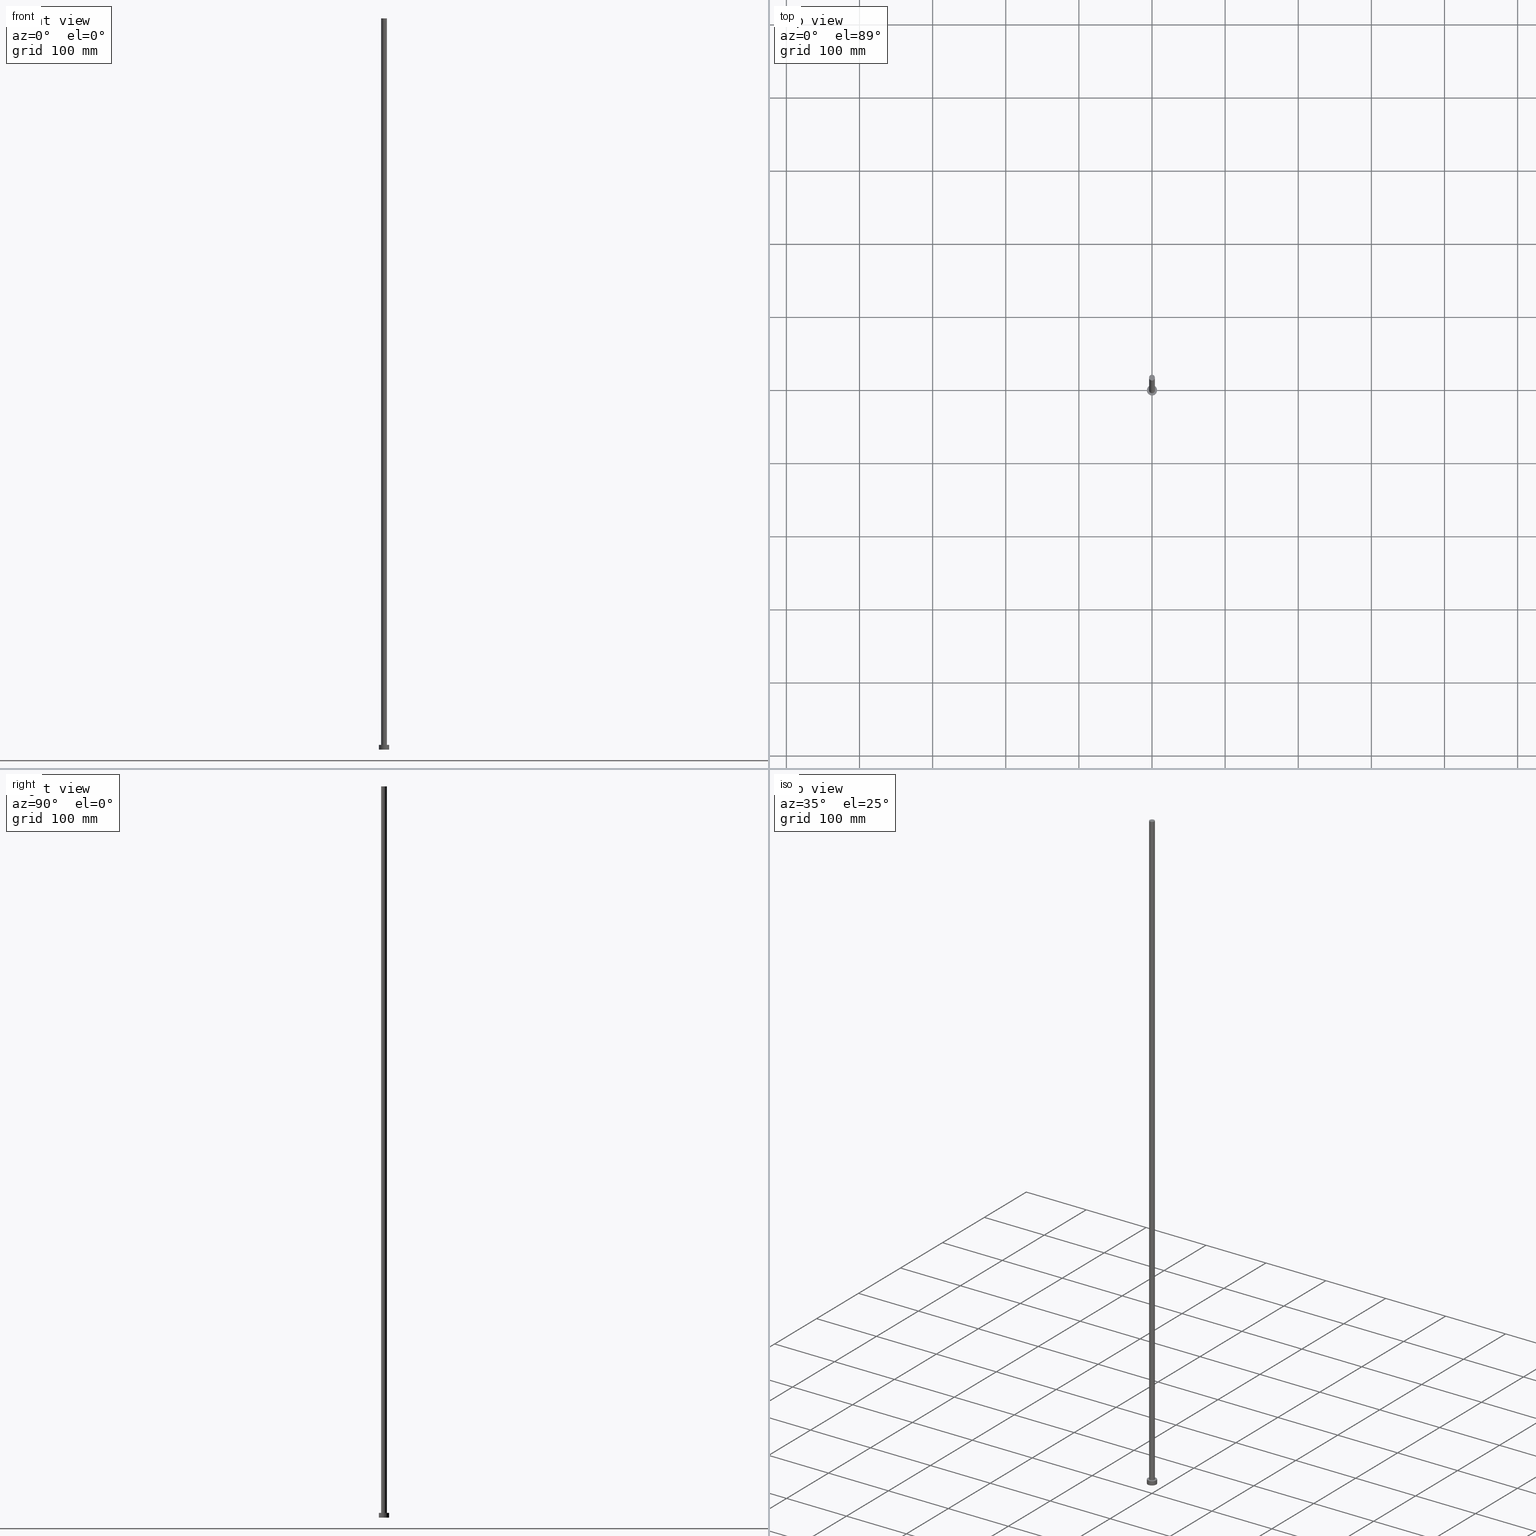
[diagram: canonical four-view strip — front | top / right | iso, engineering-drawing reading convention]
A machine part, canonical four-view strip (front | top / right | iso — engineering-drawing reading convention). The complete STEP part file that produces these views, byte-faithful:
ISO-10303-21;
HEADER;
FILE_DESCRIPTION (( 'STEP AP203' ),
    '1' );
FILE_NAME ('d707.STEP',
    '2023-02-13T14:18:10',
    ( '' ),
    ( '' ),
    'SwSTEP 2.0',
    'SolidWorks 2019',
    '' );
FILE_SCHEMA (( 'CONFIG_CONTROL_DESIGN' ));
ENDSEC;

DATA;
#1 = PERSON_AND_ORGANIZATION_ROLE ( 'creator' ) ;
#2 = EDGE_CURVE ( 'NONE', #3, #41, #100, .T. ) ;
#3 = VERTEX_POINT ( 'NONE', #22 ) ;
#4 = SHAPE_DEFINITION_REPRESENTATION ( #69, #254 ) ;
#5 = CARTESIAN_POINT ( 'NONE',  ( -7.000000000000000000, 0.000000000000000000, 6.500000000000000000 ) ) ;
#6 = EDGE_LOOP ( 'NONE', ( #178, #94, #60, #97 ) ) ;
#7 = AXIS2_PLACEMENT_3D ( 'NONE', #29, #67, #162 ) ;
#8 = APPROVAL_ROLE ( '' ) ;
#9 = ORIENTED_EDGE ( 'NONE', *, *, #246, .F. ) ;
#10 = APPROVAL_STATUS ( 'not_yet_approved' ) ;
#11 = ORIENTED_EDGE ( 'NONE', *, *, #15, .F. ) ;
#12 = ADVANCED_FACE ( 'NONE', ( #158 ), #249, .T. ) ;
#13 = CARTESIAN_POINT ( 'NONE',  ( 4.000000000000000000, 4.898587196589412829E-16, 6.500000000000000000 ) ) ;
#14 = VECTOR ( 'NONE', #153, 1000.000000000000000 ) ;
#15 = EDGE_CURVE ( 'NONE', #224, #41, #117, .T. ) ;
#16 = PERSON_AND_ORGANIZATION ( #145, #44 ) ;
#17 = APPROVAL ( #31, 'NEUR�EN�' ) ;
#18 = APPROVAL_DATE_TIME ( #156, #17 ) ;
#19 = ORIENTED_EDGE ( 'NONE', *, *, #131, .F. ) ;
#20 = DATE_AND_TIME ( #52, #104 ) ;
#21 = ORIENTED_EDGE ( 'NONE', *, *, #210, .T. ) ;
#22 = CARTESIAN_POINT ( 'NONE',  ( -4.000000000000000000, 0.000000000000000000, 1000.000000000000000 ) ) ;
#23 = PRODUCT_DEFINITION_FORMATION_WITH_SPECIFIED_SOURCE ( 'LIBOVOLN�', '', #108, .NOT_KNOWN. ) ;
#24 = DATE_TIME_ROLE ( 'creation_date' ) ;
#25 = DIRECTION ( 'NONE',  ( -0.000000000000000000, -0.000000000000000000, -1.000000000000000000 ) ) ;
#26 = ORIENTED_EDGE ( 'NONE', *, *, #98, .T. ) ;
#27 = CARTESIAN_POINT ( 'NONE',  ( 0.000000000000000000, 0.000000000000000000, 1000.000000000000000 ) ) ;
#28 = EDGE_CURVE ( 'NONE', #182, #63, #90, .T. ) ;
#29 = CARTESIAN_POINT ( 'NONE',  ( 0.000000000000000000, 0.000000000000000000, 0.000000000000000000 ) ) ;
#30 = AXIS2_PLACEMENT_3D ( 'NONE', #135, #89, #99 ) ;
#31 = APPROVAL_STATUS ( 'not_yet_approved' ) ;
#32 = AXIS2_PLACEMENT_3D ( 'NONE', #144, #165, #66 ) ;
#33 = MECHANICAL_CONTEXT ( 'NONE', #128, 'mechanical' ) ;
#34 = APPROVAL_DATE_TIME ( #211, #107 ) ;
#35 = CARTESIAN_POINT ( 'NONE',  ( 0.000000000000000000, 0.000000000000000000, 6.500000000000000000 ) ) ;
#36 = AXIS2_PLACEMENT_3D ( 'NONE', #244, #54, #191 ) ;
#37 = APPROVAL_ROLE ( '' ) ;
#38 = CARTESIAN_POINT ( 'NONE',  ( 7.000000000000000000, 8.572527594031471218E-16, 0.000000000000000000 ) ) ;
#39 = CALENDAR_DATE ( 2023, 13, 2 ) ;
#40 = ADVANCED_FACE ( 'NONE', ( #240 ), #120, .T. ) ;
#41 = VERTEX_POINT ( 'NONE', #146 ) ;
#42 = PERSON_AND_ORGANIZATION ( #145, #44 ) ;
#43 = CARTESIAN_POINT ( 'NONE',  ( 0.000000000000000000, 0.000000000000000000, 6.500000000000000000 ) ) ;
#44 = ORGANIZATION ( 'NEUR�EN�', 'NEUR�EN�', '' ) ;
#45 = VECTOR ( 'NONE', #73, 1000.000000000000000 ) ;
#46 = DIRECTION ( 'NONE',  ( 1.000000000000000000, 0.000000000000000000, 0.000000000000000000 ) ) ;
#47 = VERTEX_POINT ( 'NONE', #234 ) ;
#48 = EDGE_CURVE ( 'NONE', #195, #47, #217, .T. ) ;
#49 = AXIS2_PLACEMENT_3D ( 'NONE', #177, #239, #133 ) ;
#50 = DIRECTION ( 'NONE',  ( -1.000000000000000000, 0.000000000000000000, 0.000000000000000000 ) ) ;
#51 = CIRCLE ( 'NONE', #49, 7.000000000000000000 ) ;
#52 = CALENDAR_DATE ( 2023, 13, 2 ) ;
#53 = CYLINDRICAL_SURFACE ( 'NONE', #205, 7.000000000000000000 ) ;
#54 = DIRECTION ( 'NONE',  ( 0.000000000000000000, 0.000000000000000000, 1.000000000000000000 ) ) ;
#55 = AXIS2_PLACEMENT_3D ( 'NONE', #75, #151, #152 ) ;
#56 = ORIENTED_EDGE ( 'NONE', *, *, #98, .F. ) ;
#57 = PERSON_AND_ORGANIZATION ( #145, #44 ) ;
#58 = CYLINDRICAL_SURFACE ( 'NONE', #170, 7.000000000000000000 ) ;
#59 = ORIENTED_EDGE ( 'NONE', *, *, #163, .F. ) ;
#60 = ORIENTED_EDGE ( 'NONE', *, *, #48, .T. ) ;
#61 = CIRCLE ( 'NONE', #230, 7.000000000000000000 ) ;
#62 = CARTESIAN_POINT ( 'NONE',  ( 0.000000000000000000, 0.000000000000000000, 0.000000000000000000 ) ) ;
#63 = VERTEX_POINT ( 'NONE', #38 ) ;
#64 = ADVANCED_FACE ( 'NONE', ( #173 ), #245, .F. ) ;
#65 = CLOSED_SHELL ( 'NONE', ( #12, #86, #143, #70, #64, #40, #194 ) ) ;
#66 = DIRECTION ( 'NONE',  ( 1.000000000000000000, 0.000000000000000000, 0.000000000000000000 ) ) ;
#67 = DIRECTION ( 'NONE',  ( 0.000000000000000000, 0.000000000000000000, 1.000000000000000000 ) ) ;
#68 = AXIS2_PLACEMENT_3D ( 'NONE', #115, #197, #139 ) ;
#69 = PRODUCT_DEFINITION_SHAPE ( 'NONE', 'NONE',  #147 ) ;
#70 = ADVANCED_FACE ( 'NONE', ( #200, #157 ), #136, .T. ) ;
#71 = APPROVAL_PERSON_ORGANIZATION ( #16, #17, #106 ) ;
#72 = SECURITY_CLASSIFICATION_LEVEL ( 'unclassified' ) ;
#73 = DIRECTION ( 'NONE',  ( -0.000000000000000000, -0.000000000000000000, -1.000000000000000000 ) ) ;
#74 = CARTESIAN_POINT ( 'NONE',  ( 7.000000000000000000, 8.572527594031471218E-16, 6.500000000000000000 ) ) ;
#75 = CARTESIAN_POINT ( 'NONE',  ( 0.000000000000000000, 0.000000000000000000, 0.000000000000000000 ) ) ;
#76 = EDGE_LOOP ( 'NONE', ( #19, #9 ) ) ;
#77 = PERSON_AND_ORGANIZATION ( #145, #44 ) ;
#78 = EDGE_LOOP ( 'NONE', ( #112, #56, #196, #137 ) ) ;
#79 = DATE_TIME_ROLE ( 'classification_date' ) ;
#80 = ORIENTED_EDGE ( 'NONE', *, *, #15, .T. ) ;
#81 = EDGE_LOOP ( 'NONE', ( #247, #215 ) ) ;
#82 = APPROVAL_PERSON_ORGANIZATION ( #216, #250, #8 ) ;
#83 = PLANE ( 'NONE',  #251 ) ;
#84 = VECTOR ( 'NONE', #160, 1000.000000000000000 ) ;
#85 = CC_DESIGN_SECURITY_CLASSIFICATION ( #255, ( #23 ) ) ;
#86 = ADVANCED_FACE ( 'NONE', ( #243 ), #53, .T. ) ;
#87 = CIRCLE ( 'NONE', #68, 7.000000000000000000 ) ;
#88 = APPROVAL_DATE_TIME ( #20, #250 ) ;
#89 = DIRECTION ( 'NONE',  ( 0.000000000000000000, 0.000000000000000000, 1.000000000000000000 ) ) ;
#90 = LINE ( 'NONE', #74, #14 ) ;
#91 = COORDINATED_UNIVERSAL_TIME_OFFSET ( 1, 0, .AHEAD. ) ;
#92 = CC_DESIGN_PERSON_AND_ORGANIZATION_ASSIGNMENT ( #124, #167, ( #108 ) ) ;
#93 = EDGE_LOOP ( 'NONE', ( #26, #172 ) ) ;
#94 = ORIENTED_EDGE ( 'NONE', *, *, #183, .F. ) ;
#95 = CIRCLE ( 'NONE', #241, 4.000000000000000000 ) ;
#96 = CALENDAR_DATE ( 2023, 13, 2 ) ;
#97 = ORIENTED_EDGE ( 'NONE', *, *, #131, .T. ) ;
#98 = EDGE_CURVE ( 'NONE', #3, #159, #148, .T. ) ;
#99 = DIRECTION ( 'NONE',  ( 1.000000000000000000, 0.000000000000000000, -0.000000000000000000 ) ) ;
#100 = LINE ( 'NONE', #113, #84 ) ;
#101 = LOCAL_TIME ( 15, 18, 10.00000000000000000, #209 ) ;
#102 = DIRECTION ( 'NONE',  ( -0.000000000000000000, -0.000000000000000000, -1.000000000000000000 ) ) ;
#103 = DIRECTION ( 'NONE',  ( -0.000000000000000000, -0.000000000000000000, -1.000000000000000000 ) ) ;
#104 = LOCAL_TIME ( 15, 18, 10.00000000000000000, #138 ) ;
#105 = DESIGN_CONTEXT ( 'detailed design', #149, 'design' ) ;
#106 = APPROVAL_ROLE ( '' ) ;
#107 = APPROVAL ( #242, 'NEUR�EN�' ) ;
#108 = PRODUCT ( 'd707', 'd707', '', ( #33 ) ) ;
#109 = CARTESIAN_POINT ( 'NONE',  ( 0.000000000000000000, 0.000000000000000000, 6.500000000000000000 ) ) ;
#110 = DIRECTION ( 'NONE',  ( -1.000000000000000000, 0.000000000000000000, 0.000000000000000000 ) ) ;
#111 = CARTESIAN_POINT ( 'NONE',  ( 7.000000000000000000, 8.572527594031471218E-16, 6.500000000000000000 ) ) ;
#112 = ORIENTED_EDGE ( 'NONE', *, *, #210, .F. ) ;
#113 = CARTESIAN_POINT ( 'NONE',  ( -4.000000000000000000, 0.000000000000000000, 1000.000000000000000 ) ) ;
#114 = PERSON_AND_ORGANIZATION ( #145, #44 ) ;
#115 = CARTESIAN_POINT ( 'NONE',  ( 0.000000000000000000, 0.000000000000000000, 6.500000000000000000 ) ) ;
#116 = EDGE_LOOP ( 'NONE', ( #59, #119, #155, #221 ) ) ;
#117 = CIRCLE ( 'NONE', #36, 4.000000000000000000 ) ;
#118 = MANIFOLD_SOLID_BREP ( 'P�idat vysunut�m3', #65 ) ;
#119 = ORIENTED_EDGE ( 'NONE', *, *, #28, .T. ) ;
#120 = CYLINDRICAL_SURFACE ( 'NONE', #168, 4.000000000000000000 ) ;
#121 = DIRECTION ( 'NONE',  ( 1.000000000000000000, 0.000000000000000000, -0.000000000000000000 ) ) ;
#122 = CARTESIAN_POINT ( 'NONE',  ( 0.000000000000000000, 0.000000000000000000, 1000.000000000000000 ) ) ;
#123 = LOCAL_TIME ( 15, 18, 10.00000000000000000, #91 ) ;
#124 = PERSON_AND_ORGANIZATION ( #145, #44 ) ;
#125 = CC_DESIGN_APPROVAL ( #107, ( #255 ) ) ;
#126 = CC_DESIGN_PERSON_AND_ORGANIZATION_ASSIGNMENT ( #57, #1, ( #23 ) ) ;
#127 =( GEOMETRIC_REPRESENTATION_CONTEXT ( 3 ) GLOBAL_UNCERTAINTY_ASSIGNED_CONTEXT ( ( #232 ) ) GLOBAL_UNIT_ASSIGNED_CONTEXT ( ( #164, #203, #204 ) ) REPRESENTATION_CONTEXT ( 'NONE', 'WORKASPACE' ) );
#128 = APPLICATION_CONTEXT ( 'configuration controlled 3d designs of mechanical parts and assemblies' ) ;
#129 = PERSON_AND_ORGANIZATION_ROLE ( 'classification_officer' ) ;
#130 = CARTESIAN_POINT ( 'NONE',  ( 4.000000000000000000, 4.898587196589412829E-16, 1000.000000000000000 ) ) ;
#131 = EDGE_CURVE ( 'NONE', #47, #63, #51, .T. ) ;
#132 = CALENDAR_DATE ( 2023, 13, 2 ) ;
#133 = DIRECTION ( 'NONE',  ( 1.000000000000000000, 0.000000000000000000, 0.000000000000000000 ) ) ;
#134 = PERSON_AND_ORGANIZATION_ROLE ( 'creator' ) ;
#135 = CARTESIAN_POINT ( 'NONE',  ( 0.000000000000000000, 0.000000000000000000, 6.500000000000000000 ) ) ;
#136 = PLANE ( 'NONE',  #30 ) ;
#137 = ORIENTED_EDGE ( 'NONE', *, *, #202, .T. ) ;
#138 = COORDINATED_UNIVERSAL_TIME_OFFSET ( 1, 0, .AHEAD. ) ;
#139 = DIRECTION ( 'NONE',  ( 1.000000000000000000, 0.000000000000000000, 0.000000000000000000 ) ) ;
#140 = AXIS2_PLACEMENT_3D ( 'NONE', #62, #141, #235 ) ;
#141 = DIRECTION ( 'NONE',  ( 0.000000000000000000, 0.000000000000000000, 1.000000000000000000 ) ) ;
#142 = CARTESIAN_POINT ( 'NONE',  ( 0.000000000000000000, 0.000000000000000000, 1000.000000000000000 ) ) ;
#143 = ADVANCED_FACE ( 'NONE', ( #190 ), #58, .T. ) ;
#144 = CARTESIAN_POINT ( 'NONE',  ( 0.000000000000000000, 0.000000000000000000, 6.500000000000000000 ) ) ;
#145 = PERSON ( 'NEUR�EN�', 'NEUR�EN�', 'NEUR�EN�', ('NEUR�EN�'), ('NEUR�EN�'), ('NEUR�EN�') ) ;
#146 = CARTESIAN_POINT ( 'NONE',  ( -4.000000000000000000, 0.000000000000000000, 6.500000000000000000 ) ) ;
#147 = PRODUCT_DEFINITION ( 'NEZN�M�', '', #23, #105 ) ;
#148 = CIRCLE ( 'NONE', #184, 4.000000000000000000 ) ;
#149 = APPLICATION_CONTEXT ( 'configuration controlled 3d designs of mechanical parts and assemblies' ) ;
#150 = PERSON_AND_ORGANIZATION ( #145, #44 ) ;
#151 = DIRECTION ( 'NONE',  ( 0.000000000000000000, 0.000000000000000000, 1.000000000000000000 ) ) ;
#152 = DIRECTION ( 'NONE',  ( 1.000000000000000000, 0.000000000000000000, -0.000000000000000000 ) ) ;
#153 = DIRECTION ( 'NONE',  ( -0.000000000000000000, -0.000000000000000000, -1.000000000000000000 ) ) ;
#154 = CARTESIAN_POINT ( 'NONE',  ( 0.000000000000000000, 0.000000000000000000, 1000.000000000000000 ) ) ;
#155 = ORIENTED_EDGE ( 'NONE', *, *, #246, .T. ) ;
#156 = DATE_AND_TIME ( #189, #101 ) ;
#157 = FACE_OUTER_BOUND ( 'NONE', #81, .T. ) ;
#158 = FACE_OUTER_BOUND ( 'NONE', #218, .T. ) ;
#159 = VERTEX_POINT ( 'NONE', #130 ) ;
#160 = DIRECTION ( 'NONE',  ( -0.000000000000000000, -0.000000000000000000, -1.000000000000000000 ) ) ;
#161 = LOCAL_TIME ( 15, 18, 10.00000000000000000, #237 ) ;
#162 = DIRECTION ( 'NONE',  ( 1.000000000000000000, 0.000000000000000000, 0.000000000000000000 ) ) ;
#163 = EDGE_CURVE ( 'NONE', #182, #195, #87, .T. ) ;
#164 =( LENGTH_UNIT ( ) NAMED_UNIT ( * ) SI_UNIT ( .MILLI., .METRE. ) );
#165 = DIRECTION ( 'NONE',  ( 0.000000000000000000, 0.000000000000000000, 1.000000000000000000 ) ) ;
#166 = VECTOR ( 'NONE', #102, 1000.000000000000000 ) ;
#167 = PERSON_AND_ORGANIZATION_ROLE ( 'design_owner' ) ;
#168 = AXIS2_PLACEMENT_3D ( 'NONE', #122, #103, #50 ) ;
#169 = CC_DESIGN_PERSON_AND_ORGANIZATION_ASSIGNMENT ( #114, #134, ( #147 ) ) ;
#170 = AXIS2_PLACEMENT_3D ( 'NONE', #43, #220, #214 ) ;
#171 = DIRECTION ( 'NONE',  ( 0.000000000000000000, 0.000000000000000000, 1.000000000000000000 ) ) ;
#172 = ORIENTED_EDGE ( 'NONE', *, *, #175, .T. ) ;
#173 = FACE_OUTER_BOUND ( 'NONE', #76, .T. ) ;
#174 = ORIENTED_EDGE ( 'NONE', *, *, #202, .F. ) ;
#175 = EDGE_CURVE ( 'NONE', #159, #3, #95, .T. ) ;
#176 = COORDINATED_UNIVERSAL_TIME_OFFSET ( 1, 0, .AHEAD. ) ;
#177 = CARTESIAN_POINT ( 'NONE',  ( 0.000000000000000000, 0.000000000000000000, 0.000000000000000000 ) ) ;
#178 = ORIENTED_EDGE ( 'NONE', *, *, #28, .F. ) ;
#179 = DATE_AND_TIME ( #96, #123 ) ;
#180 = ORIENTED_EDGE ( 'NONE', *, *, #175, .F. ) ;
#181 = CARTESIAN_POINT ( 'NONE',  ( 0.000000000000000000, 0.000000000000000000, 1000.000000000000000 ) ) ;
#182 = VERTEX_POINT ( 'NONE', #111 ) ;
#183 = EDGE_CURVE ( 'NONE', #195, #182, #61, .T. ) ;
#184 = AXIS2_PLACEMENT_3D ( 'NONE', #154, #171, #46 ) ;
#185 = CARTESIAN_POINT ( 'NONE',  ( -7.000000000000000000, 0.000000000000000000, 6.500000000000000000 ) ) ;
#186 = APPLICATION_PROTOCOL_DEFINITION ( 'international standard', 'config_control_design', 1994, #128 ) ;
#187 = PRODUCT_RELATED_PRODUCT_CATEGORY ( 'detail', '', ( #108 ) ) ;
#188 = CC_DESIGN_PERSON_AND_ORGANIZATION_ASSIGNMENT ( #150, #129, ( #255 ) ) ;
#189 = CALENDAR_DATE ( 2023, 13, 2 ) ;
#190 = FACE_OUTER_BOUND ( 'NONE', #6, .T. ) ;
#191 = DIRECTION ( 'NONE',  ( 1.000000000000000000, 0.000000000000000000, 0.000000000000000000 ) ) ;
#192 = DATE_AND_TIME ( #132, #222 ) ;
#193 = DIRECTION ( 'NONE',  ( 0.000000000000000000, 0.000000000000000000, 1.000000000000000000 ) ) ;
#194 = ADVANCED_FACE ( 'NONE', ( #226 ), #83, .T. ) ;
#195 = VERTEX_POINT ( 'NONE', #185 ) ;
#196 = ORIENTED_EDGE ( 'NONE', *, *, #2, .T. ) ;
#197 = DIRECTION ( 'NONE',  ( 0.000000000000000000, 0.000000000000000000, 1.000000000000000000 ) ) ;
#198 = EDGE_LOOP ( 'NONE', ( #174, #11 ) ) ;
#199 = APPROVAL_PERSON_ORGANIZATION ( #77, #107, #37 ) ;
#200 = FACE_BOUND ( 'NONE', #198, .T. ) ;
#201 = ORIENTED_EDGE ( 'NONE', *, *, #2, .F. ) ;
#202 = EDGE_CURVE ( 'NONE', #41, #224, #213, .T. ) ;
#203 =( NAMED_UNIT ( * ) PLANE_ANGLE_UNIT ( ) SI_UNIT ( $, .RADIAN. ) );
#204 =( NAMED_UNIT ( * ) SI_UNIT ( $, .STERADIAN. ) SOLID_ANGLE_UNIT ( ) );
#205 = AXIS2_PLACEMENT_3D ( 'NONE', #109, #25, #223 ) ;
#206 = DIRECTION ( 'NONE',  ( 1.000000000000000000, 0.000000000000000000, 0.000000000000000000 ) ) ;
#207 = CC_DESIGN_PERSON_AND_ORGANIZATION_ASSIGNMENT ( #42, #219, ( #23 ) ) ;
#208 = APPLICATION_PROTOCOL_DEFINITION ( 'international standard', 'config_control_design', 1994, #149 ) ;
#209 = COORDINATED_UNIVERSAL_TIME_OFFSET ( 1, 0, .AHEAD. ) ;
#210 = EDGE_CURVE ( 'NONE', #159, #224, #228, .T. ) ;
#211 = DATE_AND_TIME ( #39, #161 ) ;
#212 = DIRECTION ( 'NONE',  ( 1.000000000000000000, 0.000000000000000000, 0.000000000000000000 ) ) ;
#213 = CIRCLE ( 'NONE', #32, 4.000000000000000000 ) ;
#214 = DIRECTION ( 'NONE',  ( -1.000000000000000000, 0.000000000000000000, 0.000000000000000000 ) ) ;
#215 = ORIENTED_EDGE ( 'NONE', *, *, #163, .T. ) ;
#216 = PERSON_AND_ORGANIZATION ( #145, #44 ) ;
#217 = LINE ( 'NONE', #5, #45 ) ;
#218 = EDGE_LOOP ( 'NONE', ( #180, #21, #80, #201 ) ) ;
#219 = PERSON_AND_ORGANIZATION_ROLE ( 'design_supplier' ) ;
#220 = DIRECTION ( 'NONE',  ( -0.000000000000000000, -0.000000000000000000, -1.000000000000000000 ) ) ;
#221 = ORIENTED_EDGE ( 'NONE', *, *, #48, .F. ) ;
#222 = LOCAL_TIME ( 15, 18, 10.00000000000000000, #176 ) ;
#223 = DIRECTION ( 'NONE',  ( -1.000000000000000000, 0.000000000000000000, 0.000000000000000000 ) ) ;
#224 = VERTEX_POINT ( 'NONE', #13 ) ;
#225 = CC_DESIGN_DATE_AND_TIME_ASSIGNMENT ( #179, #79, ( #255 ) ) ;
#226 = FACE_OUTER_BOUND ( 'NONE', #93, .T. ) ;
#227 = DIRECTION ( 'NONE',  ( -0.000000000000000000, -0.000000000000000000, -1.000000000000000000 ) ) ;
#228 = LINE ( 'NONE', #229, #166 ) ;
#229 = CARTESIAN_POINT ( 'NONE',  ( 4.000000000000000000, 4.898587196589412829E-16, 1000.000000000000000 ) ) ;
#230 = AXIS2_PLACEMENT_3D ( 'NONE', #35, #193, #206 ) ;
#231 = DIRECTION ( 'NONE',  ( 0.000000000000000000, 0.000000000000000000, 1.000000000000000000 ) ) ;
#232 = UNCERTAINTY_MEASURE_WITH_UNIT (LENGTH_MEASURE( 1.000000000000000082E-05 ), #164, 'distance_accuracy_value', 'NONE');
#233 = CC_DESIGN_APPROVAL ( #250, ( #23 ) ) ;
#234 = CARTESIAN_POINT ( 'NONE',  ( -7.000000000000000000, 0.000000000000000000, 0.000000000000000000 ) ) ;
#235 = DIRECTION ( 'NONE',  ( 1.000000000000000000, 0.000000000000000000, 0.000000000000000000 ) ) ;
#236 = AXIS2_PLACEMENT_3D ( 'NONE', #142, #227, #110 ) ;
#237 = COORDINATED_UNIVERSAL_TIME_OFFSET ( 1, 0, .AHEAD. ) ;
#238 = DIRECTION ( 'NONE',  ( 0.000000000000000000, 0.000000000000000000, 1.000000000000000000 ) ) ;
#239 = DIRECTION ( 'NONE',  ( 0.000000000000000000, 0.000000000000000000, 1.000000000000000000 ) ) ;
#240 = FACE_OUTER_BOUND ( 'NONE', #78, .T. ) ;
#241 = AXIS2_PLACEMENT_3D ( 'NONE', #181, #238, #212 ) ;
#242 = APPROVAL_STATUS ( 'not_yet_approved' ) ;
#243 = FACE_OUTER_BOUND ( 'NONE', #116, .T. ) ;
#244 = CARTESIAN_POINT ( 'NONE',  ( 0.000000000000000000, 0.000000000000000000, 6.500000000000000000 ) ) ;
#245 = PLANE ( 'NONE',  #55 ) ;
#246 = EDGE_CURVE ( 'NONE', #63, #47, #248, .T. ) ;
#247 = ORIENTED_EDGE ( 'NONE', *, *, #183, .T. ) ;
#248 = CIRCLE ( 'NONE', #7, 7.000000000000000000 ) ;
#249 = CYLINDRICAL_SURFACE ( 'NONE', #236, 4.000000000000000000 ) ;
#250 = APPROVAL ( #10, 'NEUR�EN�' ) ;
#251 = AXIS2_PLACEMENT_3D ( 'NONE', #27, #231, #121 ) ;
#252 = CC_DESIGN_APPROVAL ( #17, ( #147 ) ) ;
#253 = CC_DESIGN_DATE_AND_TIME_ASSIGNMENT ( #192, #24, ( #147 ) ) ;
#254 = ADVANCED_BREP_SHAPE_REPRESENTATION ( 'd707', ( #118, #140 ), #127 ) ;
#255 = SECURITY_CLASSIFICATION ( '', '', #72 ) ;
ENDSEC;
END-ISO-10303-21;
